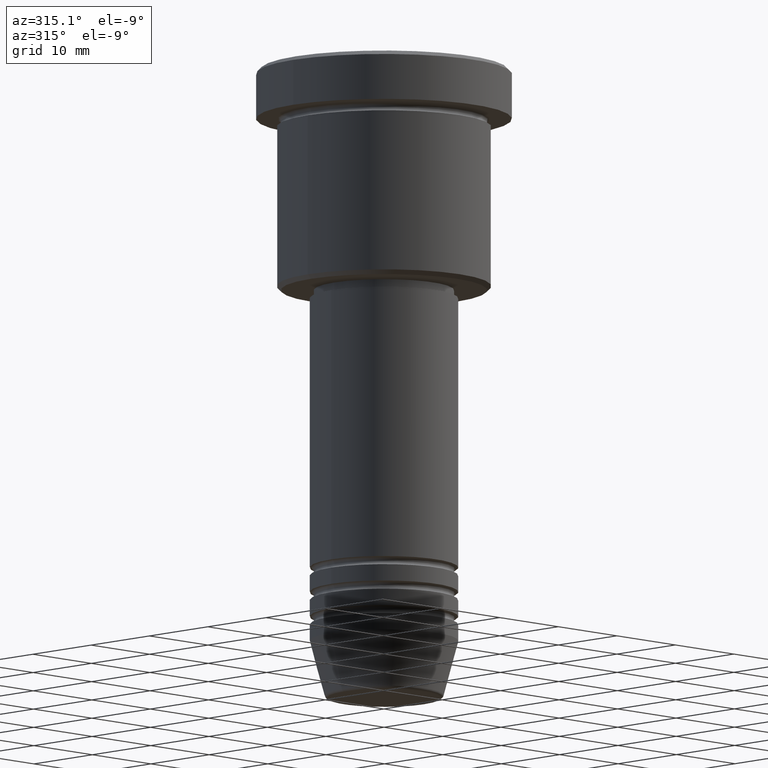
[diagram: clean part render]
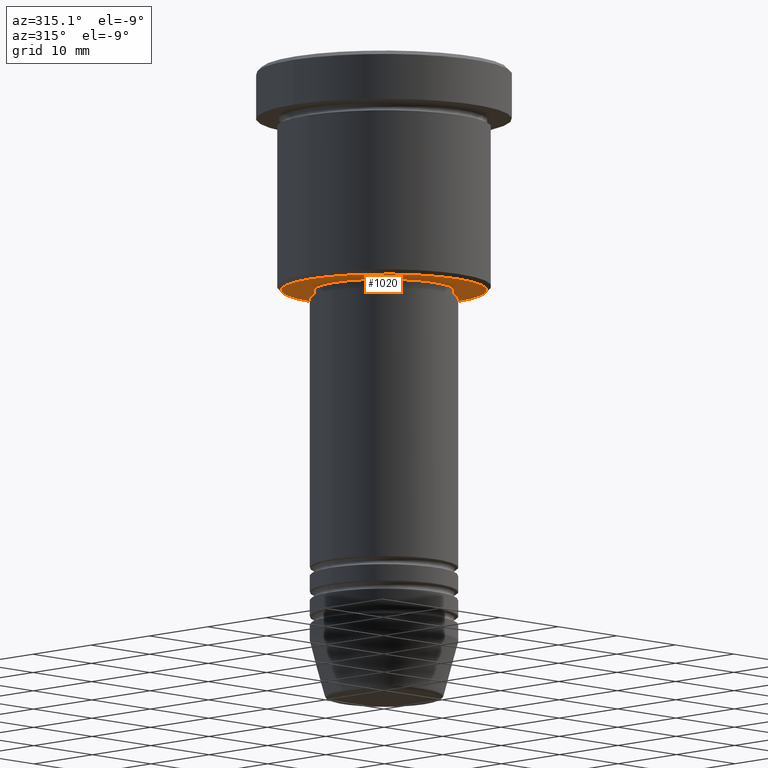
[diagram: same view with one face highlighted and labeled with its STEP entity id]
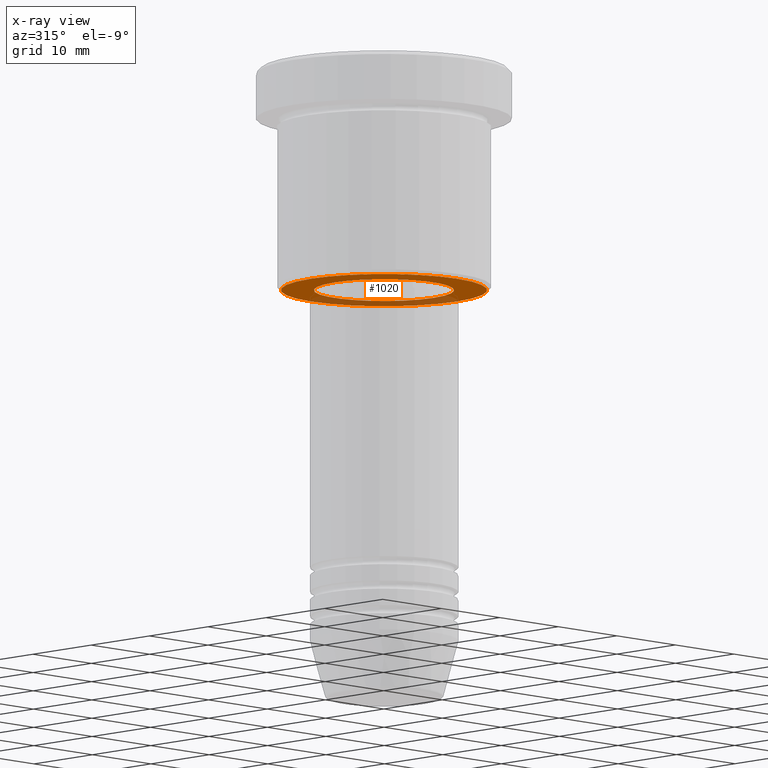
[diagram: x-ray of the same camera — body ghosted, the highlighted face saturated]
A machine part, auxiliary view. The second image highlights one B-rep face of the part: STEP entity #1020.
The next image is the same camera in x-ray: the body ghosted, the highlighted face saturated — about 30% of this face is hidden behind the body in this view.
In plain terms, the highlighted planar face has unit normal (0, 0, -1).
Its self-contained STEP definition (entity closure, byte-faithful):
#5 = CARTESIAN_POINT ( 'NONE',  ( 0.000000000000000000, 0.000000000000000000, -27.00000000000000355 ) ) ;
#33 = FACE_OUTER_BOUND ( 'NONE', #410, .T. ) ;
#128 = VERTEX_POINT ( 'NONE', #1009 ) ;
#140 = VERTEX_POINT ( 'NONE', #567 ) ;
#143 = EDGE_CURVE ( 'NONE', #475, #862, #154, .T. ) ;
#154 = CIRCLE ( 'NONE', #311, 12.49999999999997691 ) ;
#186 = CARTESIAN_POINT ( 'NONE',  ( 0.000000000000000000, 0.000000000000000000, -27.00000000000000355 ) ) ;
#189 = DIRECTION ( 'NONE',  ( 1.000000000000000000, 0.000000000000000000, 0.000000000000000000 ) ) ;
#245 = ORIENTED_EDGE ( 'NONE', *, *, #907, .T. ) ;
#309 = DIRECTION ( 'NONE',  ( -1.000000000000000000, 0.000000000000000000, -0.000000000000000000 ) ) ;
#311 = AXIS2_PLACEMENT_3D ( 'NONE', #186, #839, #741 ) ;
#312 = ORIENTED_EDGE ( 'NONE', *, *, #408, .T. ) ;
#380 = ORIENTED_EDGE ( 'NONE', *, *, #143, .T. ) ;
#381 = DIRECTION ( 'NONE',  ( 0.000000000000000000, 0.000000000000000000, -1.000000000000000000 ) ) ;
#408 = EDGE_CURVE ( 'NONE', #128, #140, #695, .T. ) ;
#410 = EDGE_LOOP ( 'NONE', ( #245, #380 ) ) ;
#475 = VERTEX_POINT ( 'NONE', #553 ) ;
#529 = AXIS2_PLACEMENT_3D ( 'NONE', #5, #1104, #819 ) ;
#543 = DIRECTION ( 'NONE',  ( 1.000000000000000000, 0.000000000000000000, 0.000000000000000000 ) ) ;
#553 = CARTESIAN_POINT ( 'NONE',  ( -12.49999999999997691, 1.561424668912873731E-15, -27.00000000000000355 ) ) ;
#567 = CARTESIAN_POINT ( 'NONE',  ( 8.499999999999998224, 0.000000000000000000, -27.00000000000000711 ) ) ;
#646 = DIRECTION ( 'NONE',  ( -0.000000000000000000, -0.000000000000000000, 1.000000000000000000 ) ) ;
#695 = CIRCLE ( 'NONE', #1175, 8.499999999999998224 ) ;
#731 = CARTESIAN_POINT ( 'NONE',  ( 0.000000000000000000, 0.000000000000000000, -27.00000000000000711 ) ) ;
#736 = CIRCLE ( 'NONE', #880, 8.499999999999998224 ) ;
#741 = DIRECTION ( 'NONE',  ( -1.000000000000000000, 0.000000000000000000, 0.000000000000000000 ) ) ;
#758 = PLANE ( 'NONE',  #831 ) ;
#819 = DIRECTION ( 'NONE',  ( -1.000000000000000000, 0.000000000000000000, 0.000000000000000000 ) ) ;
#831 = AXIS2_PLACEMENT_3D ( 'NONE', #841, #381, #309 ) ;
#839 = DIRECTION ( 'NONE',  ( 0.000000000000000000, 0.000000000000000000, -1.000000000000000000 ) ) ;
#841 = CARTESIAN_POINT ( 'NONE',  ( 0.000000000000000000, 13.00000000000000000, -27.00000000000000355 ) ) ;
#862 = VERTEX_POINT ( 'NONE', #991 ) ;
#880 = AXIS2_PLACEMENT_3D ( 'NONE', #731, #911, #189 ) ;
#898 = CARTESIAN_POINT ( 'NONE',  ( 0.000000000000000000, 0.000000000000000000, -27.00000000000000711 ) ) ;
#900 = EDGE_LOOP ( 'NONE', ( #951, #312 ) ) ;
#907 = EDGE_CURVE ( 'NONE', #862, #475, #942, .T. ) ;
#911 = DIRECTION ( 'NONE',  ( -0.000000000000000000, -0.000000000000000000, 1.000000000000000000 ) ) ;
#942 = CIRCLE ( 'NONE', #529, 12.49999999999997691 ) ;
#943 = EDGE_CURVE ( 'NONE', #140, #128, #736, .T. ) ;
#951 = ORIENTED_EDGE ( 'NONE', *, *, #943, .T. ) ;
#991 = CARTESIAN_POINT ( 'NONE',  ( 12.49999999999997691, 0.000000000000000000, -27.00000000000000355 ) ) ;
#1009 = CARTESIAN_POINT ( 'NONE',  ( -8.499999999999998224, 1.040949779275249943E-15, -27.00000000000000711 ) ) ;
#1020 = ADVANCED_FACE ( 'NONE', ( #33, #1116 ), #758, .T. ) ;
#1104 = DIRECTION ( 'NONE',  ( 0.000000000000000000, 0.000000000000000000, -1.000000000000000000 ) ) ;
#1116 = FACE_BOUND ( 'NONE', #900, .T. ) ;
#1175 = AXIS2_PLACEMENT_3D ( 'NONE', #898, #646, #543 ) ;